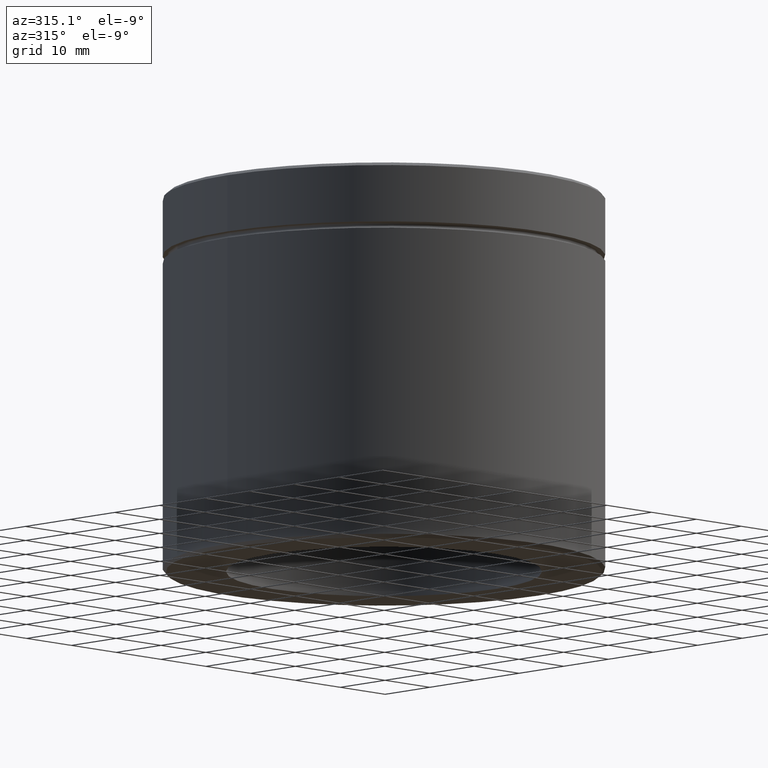
[diagram: clean part render]
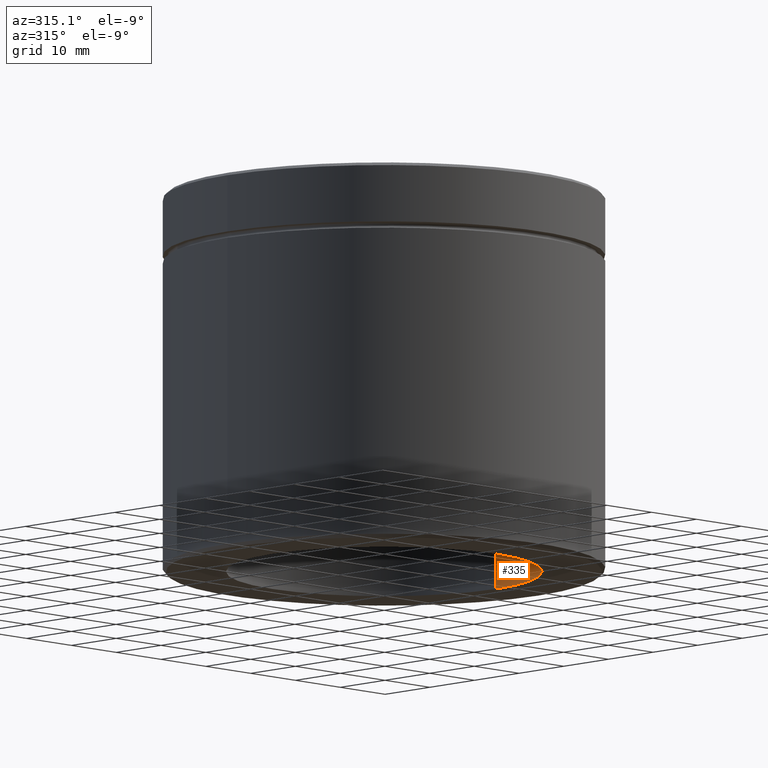
[diagram: same view with one face highlighted and labeled with its STEP entity id]
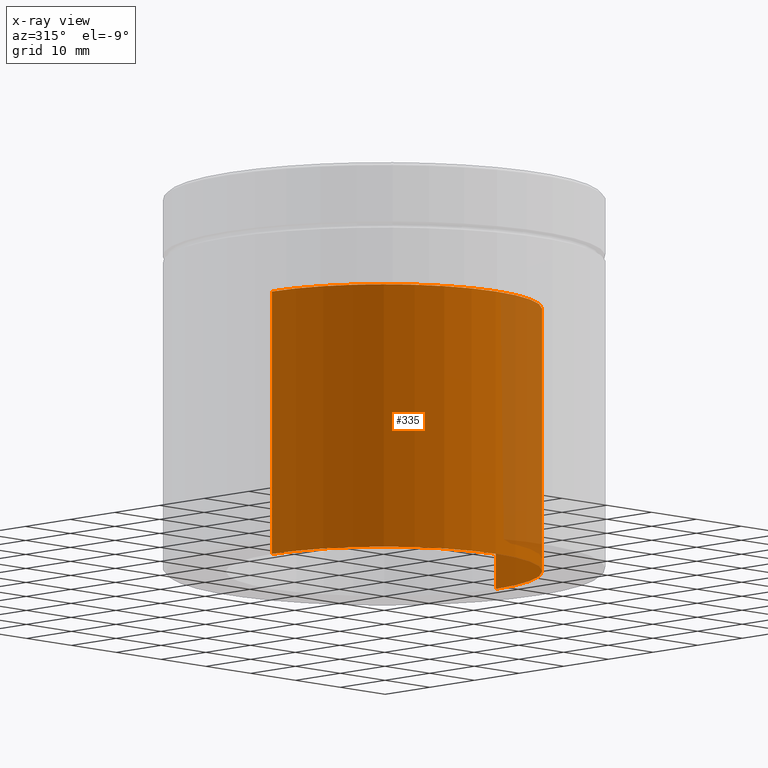
[diagram: x-ray of the same camera — body ghosted, the highlighted face saturated]
A machine part, auxiliary view. The second image highlights one B-rep face of the part: STEP entity #335.
The next image is the same camera in x-ray: the body ghosted, the highlighted face saturated — about 14% of this face is hidden behind the body in this view.
In plain terms, the highlighted cylindrical surface (partial cylindrical patch) has radius 25 mm, axis along (-0, -0, -1).
Its self-contained STEP definition (entity closure, byte-faithful):
#2 = CARTESIAN_POINT ( 'NONE',  ( -25.00000000000000000, 0.000000000000000000, -17.99999999999999645 ) ) ;
#40 = DIRECTION ( 'NONE',  ( -1.000000000000000000, 0.000000000000000000, 0.000000000000000000 ) ) ;
#48 = DIRECTION ( 'NONE',  ( -0.000000000000000000, -0.000000000000000000, -1.000000000000000000 ) ) ;
#49 = FACE_OUTER_BOUND ( 'NONE', #359, .T. ) ;
#66 = CIRCLE ( 'NONE', #137, 25.00000000000000000 ) ;
#67 = VECTOR ( 'NONE', #48, 1000.000000000000000 ) ;
#71 = EDGE_CURVE ( 'NONE', #144, #521, #107, .T. ) ;
#105 = DIRECTION ( 'NONE',  ( -1.000000000000000000, 0.000000000000000000, 0.000000000000000000 ) ) ;
#107 = CIRCLE ( 'NONE', #285, 25.00000000000000000 ) ;
#133 = CARTESIAN_POINT ( 'NONE',  ( -25.00000000000000000, 0.000000000000000000, -17.99999999999999645 ) ) ;
#137 = AXIS2_PLACEMENT_3D ( 'NONE', #262, #441, #40 ) ;
#144 = VERTEX_POINT ( 'NONE', #365 ) ;
#162 = AXIS2_PLACEMENT_3D ( 'NONE', #380, #192, #105 ) ;
#173 = CARTESIAN_POINT ( 'NONE',  ( 25.00000000000000000, 3.061616997868382254E-15, -17.99999999999999645 ) ) ;
#179 = VERTEX_POINT ( 'NONE', #363 ) ;
#190 = CARTESIAN_POINT ( 'NONE',  ( -25.00000000000000000, 0.000000000000000000, -60.00000000000000000 ) ) ;
#192 = DIRECTION ( 'NONE',  ( -0.000000000000000000, -0.000000000000000000, -1.000000000000000000 ) ) ;
#207 = EDGE_CURVE ( 'NONE', #179, #494, #66, .T. ) ;
#214 = DIRECTION ( 'NONE',  ( -0.000000000000000000, -0.000000000000000000, -1.000000000000000000 ) ) ;
#262 = CARTESIAN_POINT ( 'NONE',  ( 0.000000000000000000, 0.000000000000000000, -17.99999999999999645 ) ) ;
#271 = ORIENTED_EDGE ( 'NONE', *, *, #71, .T. ) ;
#277 = LINE ( 'NONE', #173, #67 ) ;
#285 = AXIS2_PLACEMENT_3D ( 'NONE', #386, #556, #559 ) ;
#297 = VECTOR ( 'NONE', #214, 1000.000000000000000 ) ;
#335 = ADVANCED_FACE ( 'NONE', ( #49 ), #460, .F. ) ;
#359 = EDGE_LOOP ( 'NONE', ( #404, #367, #271, #526 ) ) ;
#363 = CARTESIAN_POINT ( 'NONE',  ( 25.00000000000000000, 3.061616997868382254E-15, -17.99999999999999645 ) ) ;
#365 = CARTESIAN_POINT ( 'NONE',  ( 25.00000000000000000, 3.061616997868382254E-15, -60.00000000000000000 ) ) ;
#367 = ORIENTED_EDGE ( 'NONE', *, *, #458, .T. ) ;
#380 = CARTESIAN_POINT ( 'NONE',  ( 0.000000000000000000, 0.000000000000000000, -17.99999999999999645 ) ) ;
#386 = CARTESIAN_POINT ( 'NONE',  ( 0.000000000000000000, 0.000000000000000000, -60.00000000000000000 ) ) ;
#404 = ORIENTED_EDGE ( 'NONE', *, *, #207, .F. ) ;
#441 = DIRECTION ( 'NONE',  ( 0.000000000000000000, 0.000000000000000000, -1.000000000000000000 ) ) ;
#447 = EDGE_CURVE ( 'NONE', #494, #521, #486, .T. ) ;
#458 = EDGE_CURVE ( 'NONE', #179, #144, #277, .T. ) ;
#460 = CYLINDRICAL_SURFACE ( 'NONE', #162, 25.00000000000000000 ) ;
#486 = LINE ( 'NONE', #133, #297 ) ;
#494 = VERTEX_POINT ( 'NONE', #2 ) ;
#521 = VERTEX_POINT ( 'NONE', #190 ) ;
#526 = ORIENTED_EDGE ( 'NONE', *, *, #447, .F. ) ;
#556 = DIRECTION ( 'NONE',  ( 0.000000000000000000, 0.000000000000000000, -1.000000000000000000 ) ) ;
#559 = DIRECTION ( 'NONE',  ( -1.000000000000000000, 0.000000000000000000, 0.000000000000000000 ) ) ;